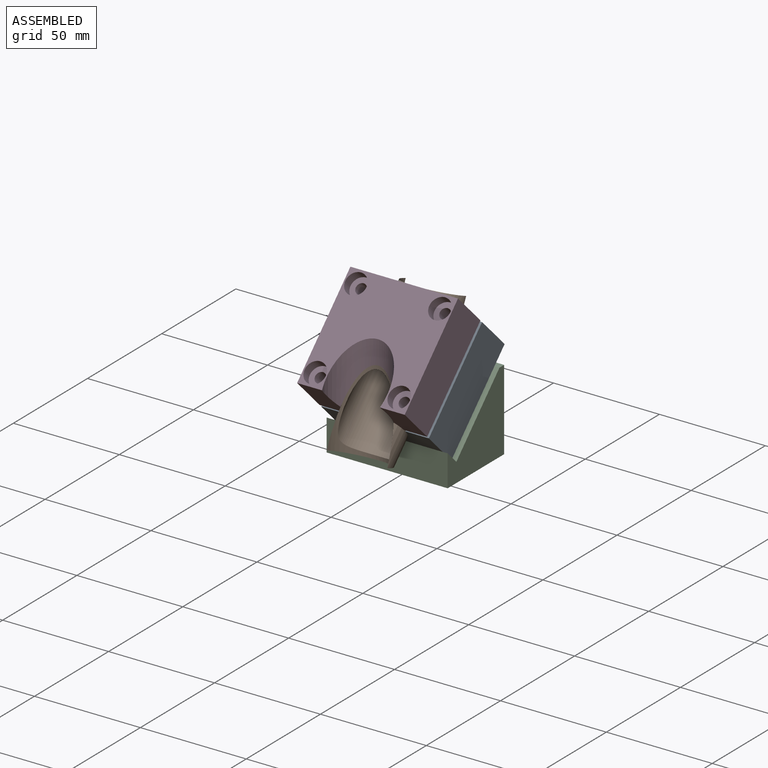
[diagram: assembled view]
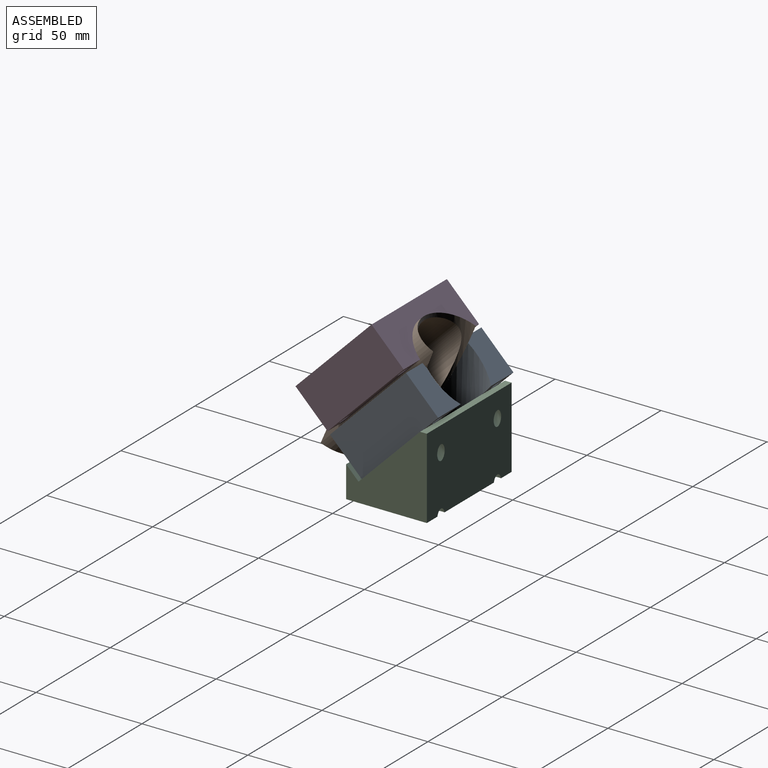
[diagram: assembled view, second angle]
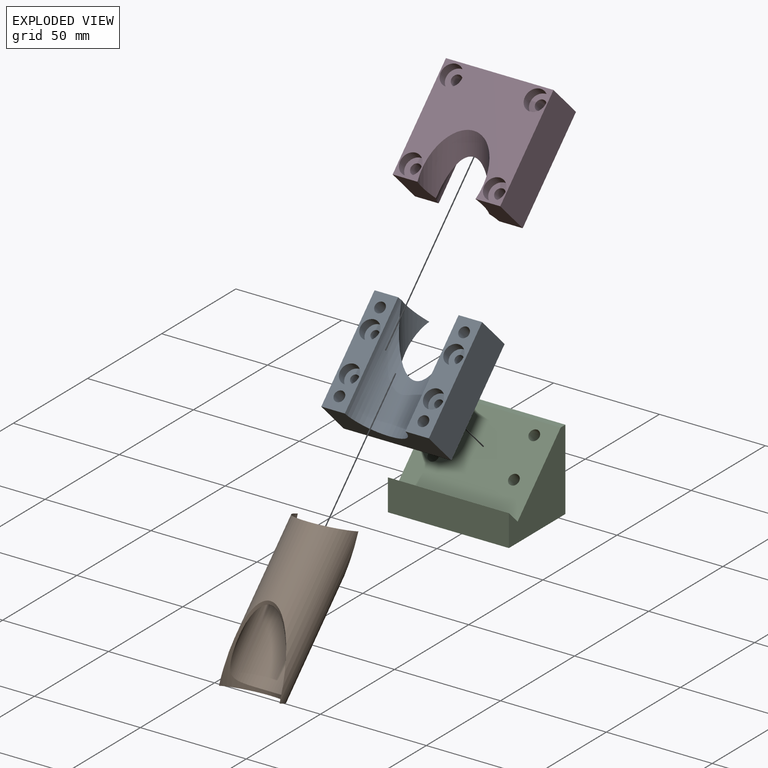
[diagram: exploded view]
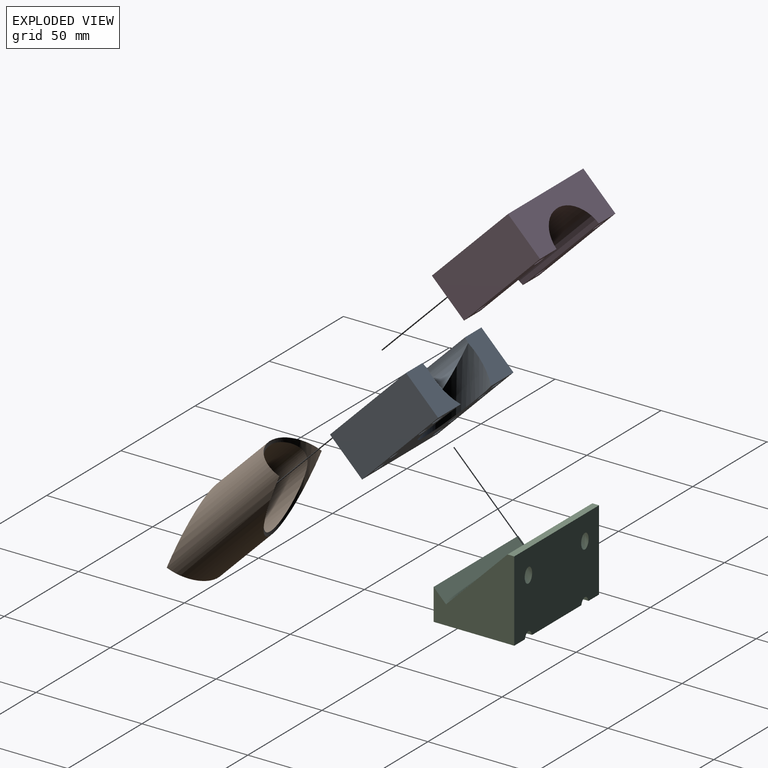
[diagram: exploded view, second angle]
ASSEMBLY  parts=4 mates=4
PART A: 26 faces, bbox 50.8x60.3x44 mm
  f0: cylinder r=14.3mm len=50.8mm, axis (0,1,0), area 1546.2mm2, adj f1,f2,f6,f7,f8,f25
  f1: plane 21.43x15.24mm, normal (0,1,0), area 257.2mm2, adj f0,f4,f5,f6,f25
  f2: plane 50.8x11.12mm, normal (0,0,1), area 398.5mm2, adj f0,f3,f7,f8,f10,f11,f21,f24
  f3: plane 50.8x21.43mm, normal (1,0,0), area 1088.4mm2, adj f2,f4,f7,f8
  f4: plane 50.8x50.8mm, normal (0,0,-1), area 1627.4mm2, adj f1,f3,f5,f7,f8,f9,f10,f11
  f5: plane 50.8x21.43mm, normal (-1,0,0), area 1088.4mm2, adj f1,f4,f6,f7
  f6: plane 50.8x11.12mm, normal (0,0,1), area 398.5mm2, adj f0,f1,f5,f7,f9,f12,f15,f18
  f7: plane 50.8x21.43mm, normal (0,-1,0), area 790mm2, adj f0,f2,f3,f4,f5,f6
  f8: plane 21.43x15.24mm, normal (0,1,0), area 257.2mm2, adj f0,f2,f3,f4,f25
  f9: cylinder r=2.5mm len=21.43mm, axis (0,0,1), area 336.5mm2, adj f4,f6
  f10: cylinder r=2.5mm len=21.43mm, axis (0,0,1), area 336.5mm2, adj f2,f4
  f11: cylinder r=2.5mm len=21.43mm, axis (0,0,1), area 336.5mm2, adj f2,f4
  f12: cylinder r=2.5mm len=21.43mm, axis (0,0,1), area 336.5mm2, adj f4,f6
  f13: cylinder r=2mm len=16.43mm, axis (0,0,1), area 206.4mm2, adj f4,f14
  f14: plane 9x9mm, normal (0,0,1), area 51.1mm2, adj f13,f15
  f15: cylinder r=4.5mm len=9mm, axis (0,0,1), area 141.4mm2, adj f6,f14
  f16: cylinder r=2mm len=16.43mm, axis (0,0,1), area 206.4mm2, adj f4,f17
  f17: plane 9x9mm, normal (0,0,1), area 51.1mm2, adj f16,f18
  f18: cylinder r=4.5mm len=9mm, axis (0,0,1), area 141.4mm2, adj f6,f17
  f19: cylinder r=2mm len=16.43mm, axis (0,0,1), area 206.4mm2, adj f4,f20
  f20: plane 9x9mm, normal (0,0,1), area 51.1mm2, adj f19,f21
  f21: cylinder r=4.5mm len=9mm, axis (0,0,1), area 141.4mm2, adj f2,f20
  f22: cylinder r=2mm len=16.43mm, axis (0,0,1), area 206.4mm2, adj f4,f23
  f23: plane 9x9mm, normal (0,0,1), area 51.1mm2, adj f22,f24
  f24: cylinder r=4.5mm len=9mm, axis (0,0,1), area 141.4mm2, adj f2,f23
  f25: cylinder r=14.3mm len=43.98mm, axis (0,0.71,0.71), area 1008.3mm2, adj f0,f1,f4,f8
PART B: 4 faces, bbox 28.6x83.6x49 mm
  f0: cylinder r=14.3mm len=75.2mm, axis (0,1,0), area 4443.2mm2, adj f1,f2
  f1: cylinder r=14.3mm len=38.81mm, axis (0,0.71,0.71), area 271.2mm2, adj f0,f3
  f2: cylinder r=14.3mm len=38.81mm, axis (0,0.71,0.71), area 272.9mm2, adj f0,f3
  f3: cylinder r=13.06mm len=63.53mm, axis (0,1,0), area 3728.1mm2, adj f1,f2
PART C: 12 faces, bbox 58.2x42.7x41.4 mm
  f0: plane 57.15x14.9mm, normal (0,-1,0), area 851.5mm2, adj f1,f5,f6,f7
  f1: plane 57.15x38.1mm, normal (0,0,-1), area 2139.8mm2, adj f0,f2,f6,f7,f8,f11
  f2: plane 58.2x39.15mm, normal (0,1,0), area 2103.9mm2, adj f1,f3,f6,f7,f8,f9,f10,f11
  f3: plane 57.15x3.18mm, normal (0,0,1), area 181.5mm2, adj f2,f4,f6,f7
  f4: plane 57.15x29.06mm, normal (0,-0.71,0.71), area 2270.4mm2, adj f3,f5,f6,f7,f8,f9,f10,f11
  f5: plane 57.15x5.86mm, normal (0,0.71,0.71), area 473.8mm2, adj f0,f4,f6,f7
  f6: plane 38.1x38.1mm, normal (1,0,0), area 876.1mm2, adj f0,f1,f2,f3,f4,f5
  f7: plane 38.1x38.1mm, normal (-1,0,0), area 876.1mm2, adj f0,f1,f2,f3,f4,f5
  f8: cylinder r=2.5mm len=24.17mm, axis (0,-0.71,0.71), area 432.5mm2, adj f1,f2,f4
  f9: cylinder r=2.5mm len=12.72mm, axis (0,-0.71,0.71), area 164.8mm2, adj f2,f4
  f10: cylinder r=2.5mm len=12.72mm, axis (0,-0.71,0.71), area 164.8mm2, adj f2,f4
  f11: cylinder r=2.5mm len=24.17mm, axis (0,-0.71,0.71), area 432.5mm2, adj f1,f2,f4
PART D: 22 faces, bbox 50.8x58.5x34.5 mm
  f0: cylinder r=14.3mm len=50.8mm, axis (0,1,0), area 1836.6mm2, adj f1,f2,f3,f7,f8,f21
  f1: plane 21.43x12.82mm, normal (0,-1,0), area 248.1mm2, adj f0,f3,f4,f5,f21
  f2: plane 50.8x11.12mm, normal (0,0,-1), area 525.7mm2, adj f0,f6,f7,f8,f12,f15
  f3: plane 50.8x11.12mm, normal (0,0,-1), area 525.7mm2, adj f0,f1,f4,f8,f9,f18
  f4: plane 50.8x21.43mm, normal (-1,0,0), area 1088.4mm2, adj f1,f3,f5,f8
  f5: plane 50.8x50.8mm, normal (0,0,1), area 1648mm2, adj f1,f4,f6,f7,f8,f11,f14,f17
  f6: plane 50.8x21.43mm, normal (1,0,0), area 1088.4mm2, adj f2,f5,f7,f8
  f7: plane 21.43x12.82mm, normal (0,-1,0), area 248.1mm2, adj f0,f2,f5,f6,f21
  f8: plane 50.8x21.43mm, normal (0,1,0), area 790mm2, adj f0,f2,f3,f4,f5,f6
  f9: cylinder r=2.5mm len=16.43mm, axis (0,0,1), area 258mm2, adj f3,f10
  f10: plane 10x10mm, normal (0,0,1), area 58.9mm2, adj f9,f11
  f11: cylinder r=5mm len=10mm, axis (0,0,1), area 157.1mm2, adj f5,f10
  f12: cylinder r=2.5mm len=16.43mm, axis (0,0,1), area 258mm2, adj f2,f13
  f13: plane 10x10mm, normal (0,0,1), area 58.9mm2, adj f12,f14
  f14: cylinder r=5mm len=10mm, axis (0,0,1), area 157.1mm2, adj f5,f13
  f15: cylinder r=2.5mm len=16.43mm, axis (0,0,1), area 258mm2, adj f2,f16
  f16: plane 10x10mm, normal (0,0,1), area 58.9mm2, adj f15,f17
  f17: cylinder r=5mm len=10mm, axis (0,0,1), area 157.1mm2, adj f5,f16
  f18: cylinder r=2.5mm len=16.43mm, axis (0,0,1), area 258mm2, adj f3,f19
  f19: plane 10x10mm, normal (0,0,1), area 58.9mm2, adj f18,f20
  f20: cylinder r=5mm len=10mm, axis (0,0,1), area 157.1mm2, adj f5,f19
  f21: cylinder r=14.3mm len=33.81mm, axis (0,0.71,0.71), area 707mm2, adj f0,f1,f5,f7
PLACE A rot(axis=(1,0,0),45deg) t=(26.66,-38.77,6.93)mm
PLACE B rot(axis=(1,0,0),45deg) t=(26.66,-38.77,6.93)mm
PLACE C t=(-2.72,-156.02,-27.75)mm
PLACE D rot(axis=(1,0,0),45deg) t=(26.66,-38.77,6.93)mm
MATE cylindrical B.f0 <-> A.f0  axis (0,0.71,0.71) through (26.66,-38.45,7.25)mm
MATE cylindrical D.f9 <-> A.f9  axis (0,-0.71,0.71) through (6.82,-49.24,-2.4)mm
MATE fastened A.f13 <-> C.f9  axis (0,0.71,-0.71) through (6.82,-39.81,-25.54)mm
MATE cylindrical D.f0 <-> B.f0  axis (0,0.71,0.71) through (26.66,-62.39,-16.68)mm
